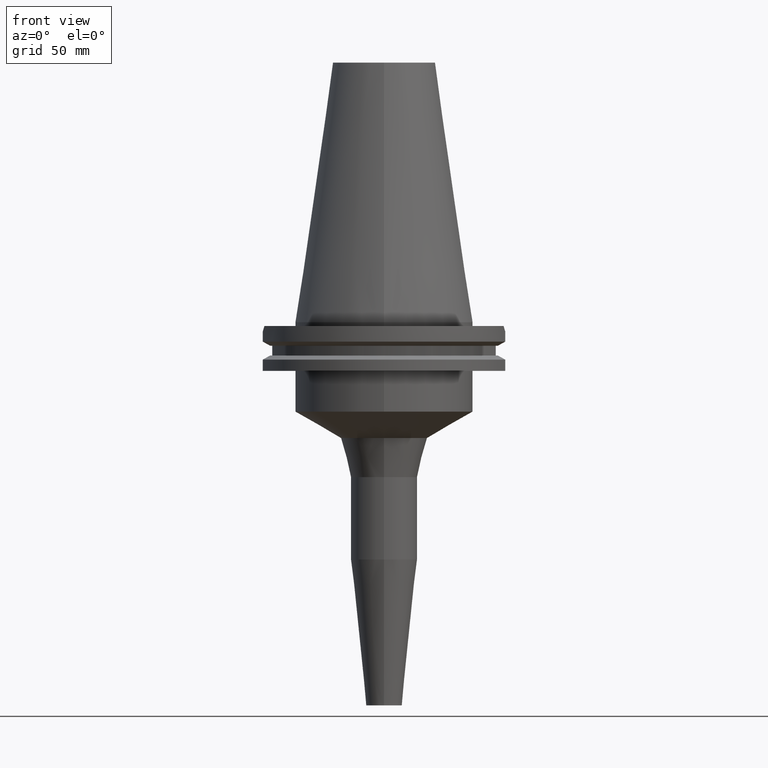
[diagram: clean part render]
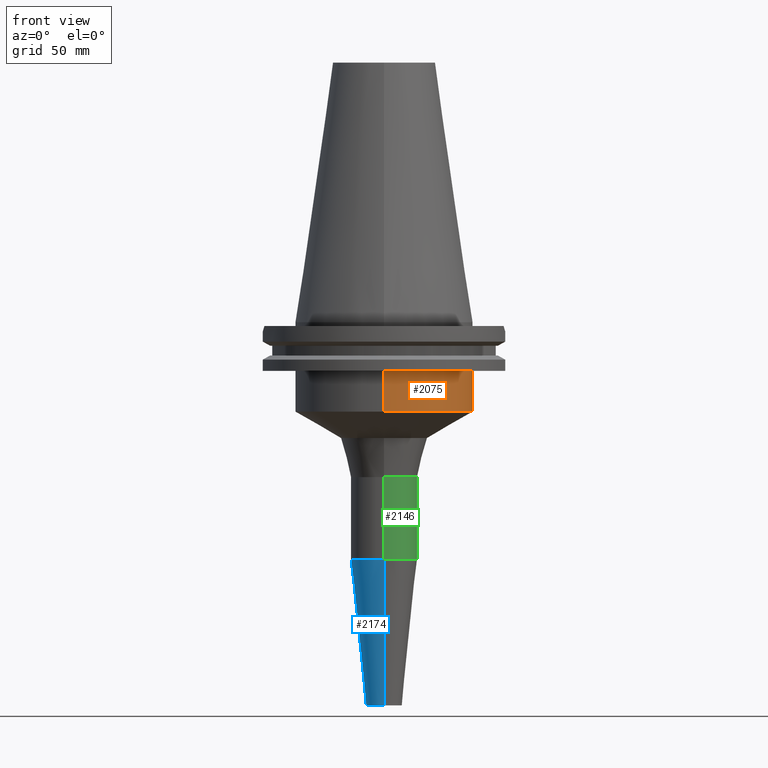
[diagram: same view with three faces highlighted in distinct colors, each labeled with its STEP entity id]
A machine part, front view with three faces highlighted in distinct colors.
Their STEP definitions:

[orange] entity #2075 — the highlighted cylindrical surface (partial cylindrical patch) has radius 34.925 mm, axis along (0, 0, -1).
#259=CARTESIAN_POINT('',(0.E0,1.398301715266E-14,-1.905E1));
#260=DIRECTION('',(0.E0,0.E0,-1.E0));
#261=DIRECTION('',(0.E0,1.E0,0.E0));
#262=AXIS2_PLACEMENT_3D('',#259,#260,#261);
#848=DIRECTION('',(0.E0,5.791257407450E-14,-1.E0));
#849=VECTOR('',#848,1.595E1);
#850=CARTESIAN_POINT('',(0.E0,-3.4925E1,-1.905E1));
#851=LINE('',#850,#849);
#855=DIRECTION('',(0.E0,-5.880353675257E-14,-1.E0));
#856=VECTOR('',#855,1.595E1);
#857=CARTESIAN_POINT('',(0.E0,3.4925E1,-1.905E1));
#858=LINE('',#857,#856);
#869=CARTESIAN_POINT('',(0.E0,0.E0,-3.5E1));
#870=DIRECTION('',(0.E0,0.E0,1.E0));
#871=DIRECTION('',(0.E0,-1.E0,0.E0));
#872=AXIS2_PLACEMENT_3D('',#869,#870,#871);
#1306=CARTESIAN_POINT('',(0.E0,3.4925E1,-3.5E1));
#1307=VERTEX_POINT('',#1306);
#1308=CARTESIAN_POINT('',(0.E0,-3.4925E1,-3.5E1));
#1309=VERTEX_POINT('',#1308);
#1310=CARTESIAN_POINT('',(0.E0,3.4925E1,-1.905E1));
#1311=VERTEX_POINT('',#1310);
#1312=CARTESIAN_POINT('',(0.E0,-3.4925E1,-1.905E1));
#1313=VERTEX_POINT('',#1312);
#2063=CARTESIAN_POINT('',(0.E0,1.398301715266E-14,1.1418E2));
#2064=DIRECTION('',(0.E0,0.E0,-1.E0));
#2065=DIRECTION('',(0.E0,-1.E0,0.E0));
#2066=AXIS2_PLACEMENT_3D('',#2063,#2064,#2065);
#2067=CYLINDRICAL_SURFACE('',#2066,3.4925E1);
#2068=ORIENTED_EDGE('',*,*,#2053,.T.);
#2070=ORIENTED_EDGE('',*,*,#2069,.F.);
#2071=ORIENTED_EDGE('',*,*,#2056,.F.);
#2072=ORIENTED_EDGE('',*,*,#1601,.F.);
#2073=EDGE_LOOP('',(#2068,#2070,#2071,#2072));
#2074=FACE_OUTER_BOUND('',#2073,.F.);
#263=CIRCLE('',#262,3.4925E1);
#873=CIRCLE('',#872,3.4925E1);
#1601=EDGE_CURVE('',#1311,#1313,#263,.T.);
#2053=EDGE_CURVE('',#1311,#1307,#858,.T.);
#2056=EDGE_CURVE('',#1313,#1309,#851,.T.);
#2069=EDGE_CURVE('',#1309,#1307,#873,.T.);
#2075=ADVANCED_FACE('',(#2074),#2067,.T.);

[blue] entity #2174 — the highlighted conical surface has half-angle 6 deg.
#952=CARTESIAN_POINT('',(0.E0,-1.487418119477E-14,-9.291381327466E1));
#953=DIRECTION('',(0.E0,0.E0,1.E0));
#954=DIRECTION('',(0.E0,1.E0,0.E0));
#955=AXIS2_PLACEMENT_3D('',#952,#953,#954);
#960=DIRECTION('',(0.E0,1.045284632677E-1,-9.945218953683E-1));
#961=VECTOR('',#960,5.740063340104E1);
#962=CARTESIAN_POINT('',(0.E0,-1.3E1,-9.291381327466E1));
#963=LINE('',#962,#961);
#967=DIRECTION('',(0.E0,-1.045284632677E-1,-9.945218953683E-1));
#968=VECTOR('',#967,5.740063340104E1);
#969=CARTESIAN_POINT('',(0.E0,1.3E1,-9.291381327466E1));
#970=LINE('',#969,#968);
#990=CARTESIAN_POINT('',(0.E0,-1.487418119477E-14,-1.5E2));
#991=DIRECTION('',(0.E0,0.E0,1.E0));
#992=DIRECTION('',(0.E0,1.E0,0.E0));
#993=AXIS2_PLACEMENT_3D('',#990,#991,#992);
#1290=CARTESIAN_POINT('',(0.E0,-6.999999999997E0,-1.5E2));
#1291=CARTESIAN_POINT('',(0.E0,6.999999999997E0,-1.5E2));
#1292=VERTEX_POINT('',#1290);
#1293=VERTEX_POINT('',#1291);
#1294=CARTESIAN_POINT('',(0.E0,1.3E1,-9.291381327466E1));
#1295=VERTEX_POINT('',#1294);
#1296=CARTESIAN_POINT('',(0.E0,-1.3E1,-9.291381327466E1));
#1297=VERTEX_POINT('',#1296);
#2160=CARTESIAN_POINT('',(0.E0,-1.487418119477E-14,-1.214569066373E2));
#2161=DIRECTION('',(0.E0,0.E0,1.E0));
#2162=DIRECTION('',(0.E0,1.E0,0.E0));
#2163=AXIS2_PLACEMENT_3D('',#2160,#2161,#2162);
#2164=CONICAL_SURFACE('',#2163,9.999999999997E0,6.E0);
#2166=ORIENTED_EDGE('',*,*,#2165,.F.);
#2167=ORIENTED_EDGE('',*,*,#2155,.T.);
#2169=ORIENTED_EDGE('',*,*,#2168,.T.);
#2171=ORIENTED_EDGE('',*,*,#2170,.F.);
#2172=EDGE_LOOP('',(#2166,#2167,#2169,#2171));
#2173=FACE_OUTER_BOUND('',#2172,.F.);
#956=CIRCLE('',#955,1.3E1);
#994=CIRCLE('',#993,6.999999999997E0);
#2155=EDGE_CURVE('',#1295,#1297,#956,.T.);
#2165=EDGE_CURVE('',#1295,#1293,#970,.T.);
#2168=EDGE_CURVE('',#1297,#1292,#963,.T.);
#2170=EDGE_CURVE('',#1293,#1292,#994,.T.);
#2174=ADVANCED_FACE('',(#2173),#2164,.T.);

[green] entity #2146 — the highlighted cylindrical surface (edge-blend (fillet) strip) has radius 13 mm, axis along (0, 0, -1).
#922=CARTESIAN_POINT('',(0.E0,0.E0,-6.0658E1));
#923=DIRECTION('',(0.E0,0.E0,-1.E0));
#924=DIRECTION('',(0.E0,1.E0,0.E0));
#925=AXIS2_PLACEMENT_3D('',#922,#923,#924);
#938=DIRECTION('',(0.E0,2.153272398657E-14,-1.E0));
#939=VECTOR('',#938,3.225581327466E1);
#940=CARTESIAN_POINT('',(0.E0,1.3E1,-6.0658E1));
#941=LINE('',#940,#939);
#945=DIRECTION('',(0.E0,-2.197329122926E-14,-1.E0));
#946=VECTOR('',#945,3.225581327466E1);
#947=CARTESIAN_POINT('',(0.E0,-1.3E1,-6.0658E1));
#948=LINE('',#947,#946);
#974=CARTESIAN_POINT('',(0.E0,-1.487418119477E-14,-9.291381327466E1));
#975=DIRECTION('',(0.E0,0.E0,1.E0));
#976=DIRECTION('',(0.E0,-1.E0,0.E0));
#977=AXIS2_PLACEMENT_3D('',#974,#975,#976);
#1294=CARTESIAN_POINT('',(0.E0,1.3E1,-9.291381327466E1));
#1295=VERTEX_POINT('',#1294);
#1296=CARTESIAN_POINT('',(0.E0,-1.3E1,-9.291381327466E1));
#1297=VERTEX_POINT('',#1296);
#1298=CARTESIAN_POINT('',(0.E0,1.3E1,-6.0658E1));
#1299=VERTEX_POINT('',#1298);
#1300=CARTESIAN_POINT('',(0.E0,-1.3E1,-6.0658E1));
#1301=VERTEX_POINT('',#1300);
#2132=CARTESIAN_POINT('',(0.E0,1.398301715266E-14,1.1418E2));
#2133=DIRECTION('',(0.E0,0.E0,-1.E0));
#2134=DIRECTION('',(0.E0,-1.E0,0.E0));
#2135=AXIS2_PLACEMENT_3D('',#2132,#2133,#2134);
#2136=CYLINDRICAL_SURFACE('',#2135,1.3E1);
#2138=ORIENTED_EDGE('',*,*,#2137,.T.);
#2140=ORIENTED_EDGE('',*,*,#2139,.F.);
#2142=ORIENTED_EDGE('',*,*,#2141,.F.);
#2143=ORIENTED_EDGE('',*,*,#2125,.F.);
#2144=EDGE_LOOP('',(#2138,#2140,#2142,#2143));
#2145=FACE_OUTER_BOUND('',#2144,.F.);
#926=CIRCLE('',#925,1.3E1);
#978=CIRCLE('',#977,1.3E1);
#2125=EDGE_CURVE('',#1299,#1301,#926,.T.);
#2137=EDGE_CURVE('',#1299,#1295,#941,.T.);
#2139=EDGE_CURVE('',#1297,#1295,#978,.T.);
#2141=EDGE_CURVE('',#1301,#1297,#948,.T.);
#2146=ADVANCED_FACE('',(#2145),#2136,.T.);